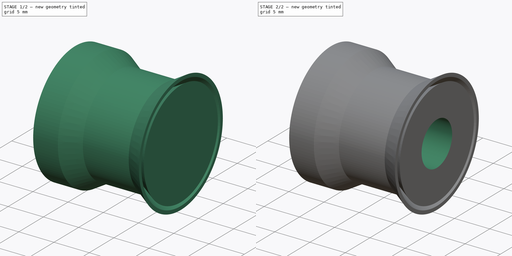
[diagram: build sequence overview — one tinted view per stage of 2, left to right]
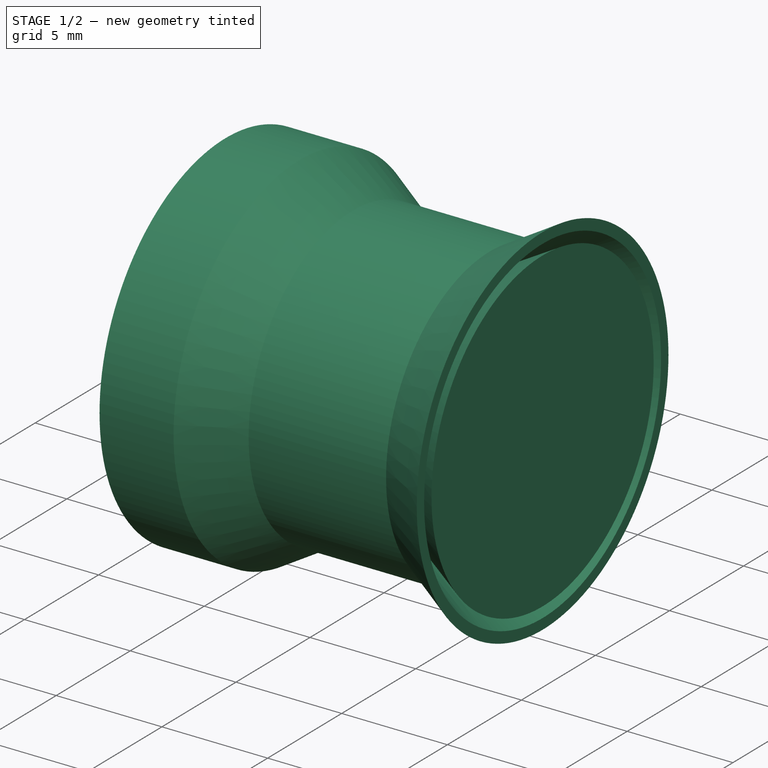
[diagram: stage 1 of 2 — iso view after this stage's code; geometry added in this stage tinted green]
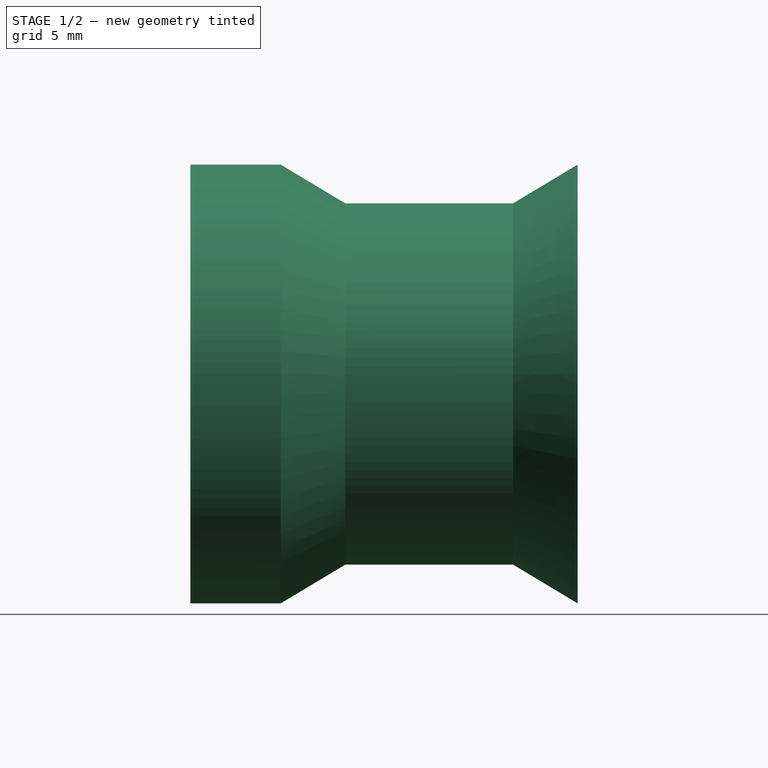
[diagram: stage 1 of 2 — front view after this stage's code; geometry added in this stage tinted green]
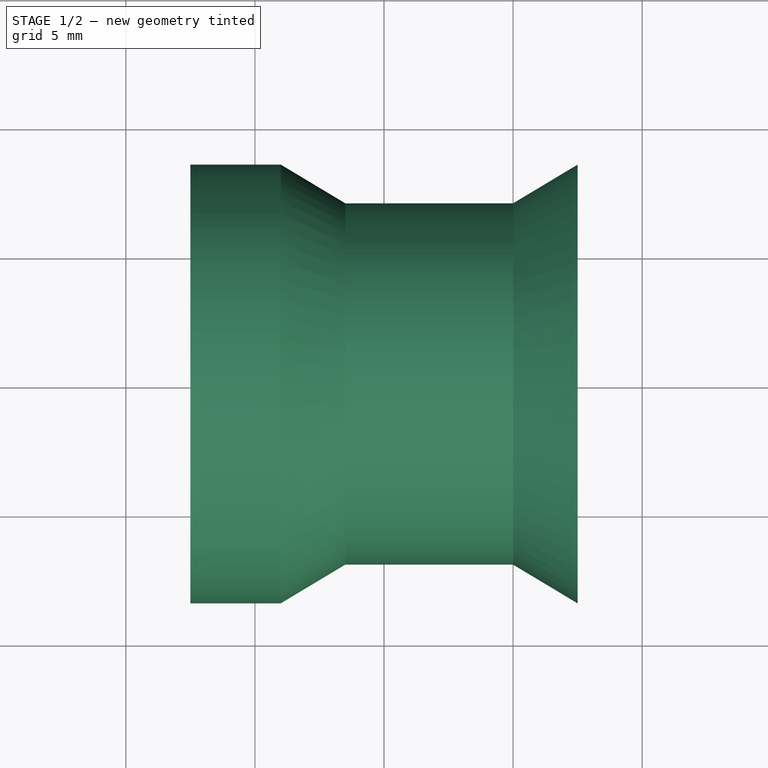
[diagram: stage 1 of 2 — top view after this stage's code; geometry added in this stage tinted green]
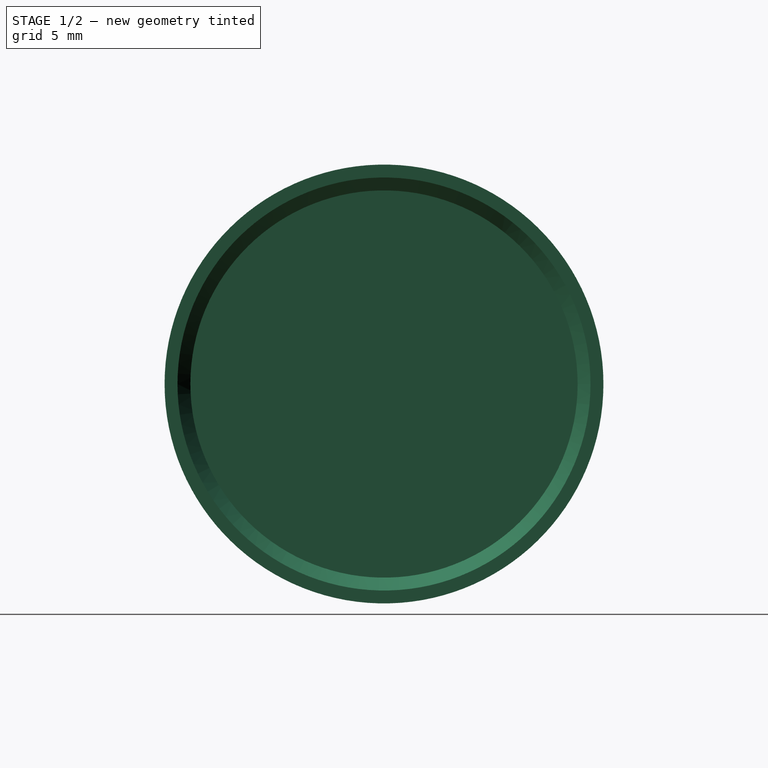
[diagram: stage 1 of 2 — right view after this stage's code; geometry added in this stage tinted green]
FCSTD DOCUMENT  (FreeCAD 0.19R)
Label: x-belt-tensioner-v3
License: All rights reserved
LicenseURL: http://en.wikipedia.org/wiki/All_rights_reserved
objects: Sketcher::SketchObject×4, PartDesign::Revolution×2, PartDesign::Body×2, PartDesign::Pocket×1
note: 12 computed .brp shape members not serialized (recipe doc carries the construction recipe); baked Part::Feature solids carry a one-line shape summary decoded from their .brp

FEATURE [Sketcher::SketchObject] Sketch
  MapMode = 5
  Support = -> [XY_Plane]
  sketch-geometry (6):
    g0: LineSegment StartX=-7.5 StartY=0 StartZ=0 EndX=-7.5 EndY=4 EndZ=0
    g1: LineSegment StartX=-7.5 StartY=4 StartZ=0 EndX=0 EndY=6 EndZ=0
    g2: LineSegment StartX=7.5 StartY=0 StartZ=0 EndX=-7.5 EndY=0 EndZ=0
    g3: LineSegment StartX=7.5 StartY=0 StartZ=0 EndX=7.5 EndY=7.5 EndZ=0
    g4: LineSegment StartX=7.5 StartY=7.5 StartZ=0 EndX=2.45096 EndY=4.58494 EndZ=0
    g5: LineSegment StartX=2.45096 StartY=4.58494 StartZ=0 EndX=0 EndY=6 EndZ=0
  constraints (18):
    c: PointOnObject(g0,g-1)
    c: Vertical(g0)
    c: Coincident(g0,g1)
    c: PointOnObject(g1,g-2)
    c: PointOnObject(g2,g-1)
    c: Coincident(g2,g0)
    c: DistanceY(g0,g0) = 4
    c: DistanceY(g0,g1) = 6
    c: DistanceX(g2,g2) = 15
    c: Coincident(g2,g3)
    c: Vertical(g3)
    c: Coincident(g3,g4)
    c: Coincident(g4,g5)
    c: Coincident(g5,g1)
    c: DistanceY(g3,g3) = 7.5
    c: DistanceX(g0,g-1) = 7.5
    c: Angle(g4,g3) = 1.0472
    c: Angle(g4,g5) = 2.0944
FEATURE [Sketcher::SketchObject] Sketch001
  ExternalGeometry = -> [Sketch]
  MapMode = 5
  Support = -> [XY_Plane001]
  sketch-geometry (10):
    g0: LineSegment StartX=-7.5 StartY=4.5 StartZ=0 EndX=-7.5 EndY=8.5 EndZ=0
    g1: LineSegment StartX=-7.5 StartY=8.5 StartZ=0 EndX=-4 EndY=8.5 EndZ=0
    g2: LineSegment StartX=-4 StartY=8.5 StartZ=0 EndX=-1.5 EndY=7 EndZ=0
    g3: LineSegment StartX=-1.5 StartY=7 StartZ=0 EndX=5 EndY=7 EndZ=0
    g4: LineSegment StartX=5 StartY=7 StartZ=0 EndX=7.5 EndY=8.5 EndZ=0
    g5: LineSegment StartX=7.5 StartY=8.5 StartZ=0 EndX=7.5 EndY=8 EndZ=0
    g6: LineSegment StartX=7.5 StartY=8 StartZ=0 EndX=2.45096 EndY=5.08494 EndZ=0
    g7: LineSegment StartX=2.45096 StartY=5.08494 StartZ=0 EndX=0 EndY=6.5 EndZ=0
    g8: LineSegment StartX=0 StartY=6.5 StartZ=0 EndX=-7.5 EndY=4.5 EndZ=0
    g9: LineSegment [constr] StartX=-7.5 StartY=8.5 StartZ=0 EndX=7.5 EndY=8.5 EndZ=0
  constraints (29):
    c: Vertical(g0)
    c: Coincident(g0,g1)
    c: Horizontal(g1)
    c: Coincident(g1,g2)
    c: Coincident(g2,g3)
    c: Horizontal(g3)
    c: Coincident(g3,g4)
    c: Coincident(g4,g5)
    c: Vertical(g5)
    c: Coincident(g5,g6)
    c: Coincident(g6,g7)
    c: PointOnObject(g7,g-2)
    c: Coincident(g7,g8)
    c: Coincident(g8,g0)
    c: Equal(g2,g4)
    c: DistanceX(g0,g4) = 15
    c: DistanceX(g0,g-1) = 7.5
    c: DistanceY(g-1,g0) = 4.5
    c: DistanceY(g-1,g5) = 8
    c: DistanceY(g-4,g7) = 0.5
    c: DistanceY(g-6,g6) = 0.5
    c: Angle(g6,g7) = 2.0944
    c: DistanceX(g3,g3) = 6.5
    c: DistanceX(g0,g2) = 6
    c: Coincident(g9,g0)
    c: Coincident(g9,g4)
    c: Horizontal(g9)
    c: DistanceY(g-5,g0) = 8.5
    c: DistanceY(g-1,g2) = 7
FEATURE [Sketcher::SketchObject] CopySketch
  sketch-geometry (5):
    g0: LineSegment StartX=-7.5 StartY=0 StartZ=0 EndX=-7.5 EndY=4 EndZ=0
    g1: LineSegment StartX=-7.5 StartY=4 StartZ=0 EndX=0 EndY=6 EndZ=0
    g2: LineSegment StartX=0 StartY=6 StartZ=0 EndX=7.5 EndY=4 EndZ=0
    g3: LineSegment StartX=7.5 StartY=4 StartZ=0 EndX=7.5 EndY=0 EndZ=0
    g4: LineSegment StartX=7.5 StartY=0 StartZ=0 EndX=-7.5 EndY=0 EndZ=0
  constraints (15):
    c: PointOnObject(g0,g-1)
    c: Vertical(g0)
    c: Coincident(g0,g1)
    c: PointOnObject(g1,g-2)
    c: Coincident(g1,g2)
    c: Coincident(g2,g3)
    c: PointOnObject(g3,g-1)
    c: Vertical(g3)
    c: Coincident(g3,g4)
    c: Coincident(g4,g0)
    c: Equal(g1,g2)
    c: Equal(g3,g0)
    c: DistanceY(g0,g0) = 4
    c: DistanceY(g0,g1) = 6
    c: DistanceX(g4,g4) = 15
FEATURE [PartDesign::Revolution] Revolution002  label="InnerPart"
  AllowMultiFace = false
  Angle = 360
  Axis = (1,0,0)
  Base = (0,0,0)
  Profile = -> Sketch
  ReferenceAxis = -> X_Axis
  Reversed = true
FEATURE [PartDesign::Body] Body  label="InnerPart001"
  Group = -> [Sketch,Revolution002,Sketch002,Pocket]
  Origin = -> Origin
  Tip = -> Pocket
FEATURE [PartDesign::Revolution] Revolution
  Angle = 360
  Axis = (1,0,0)
  Base = (0,0,0)
  Profile = -> Sketch001
  ReferenceAxis = -> X_Axis001
FEATURE [PartDesign::Body] Body001
  Group = -> [Sketch001,CopySketch,Revolution]
  Origin = -> Origin001
  Tip = -> Revolution
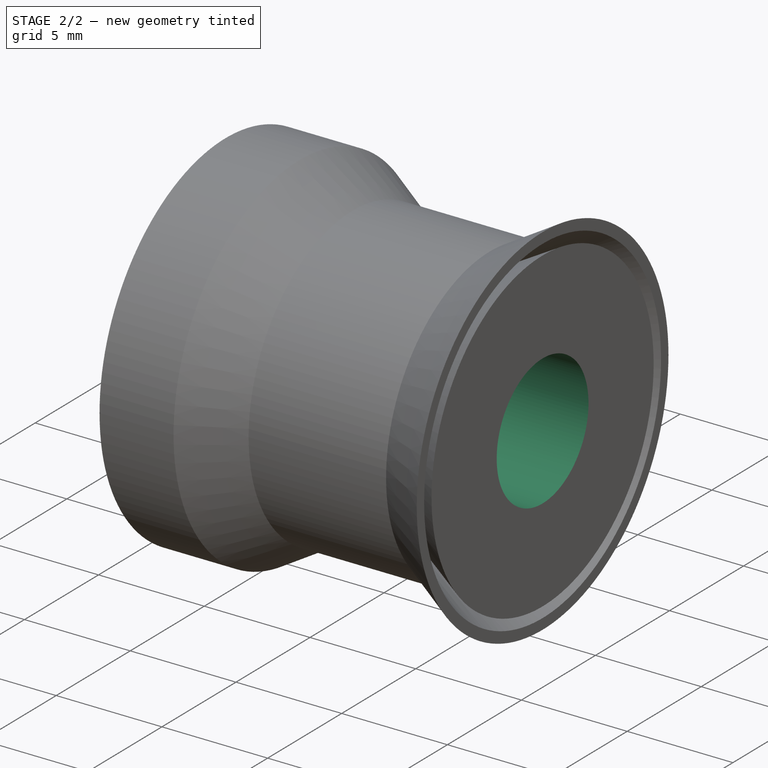
[diagram: stage 2 of 2 — iso view after this stage's code; geometry added in this stage tinted green]
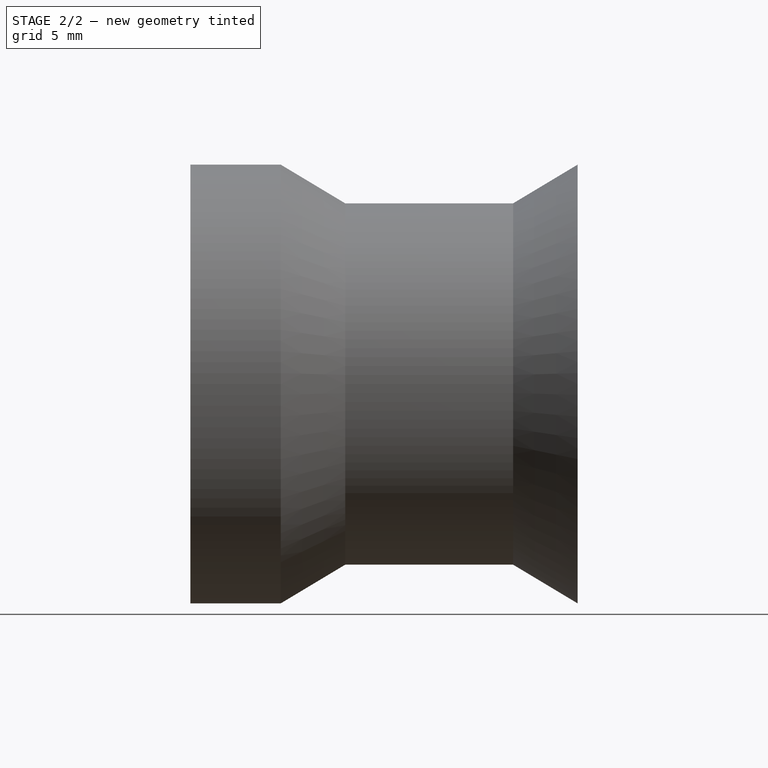
[diagram: stage 2 of 2 — front view after this stage's code; geometry added in this stage tinted green]
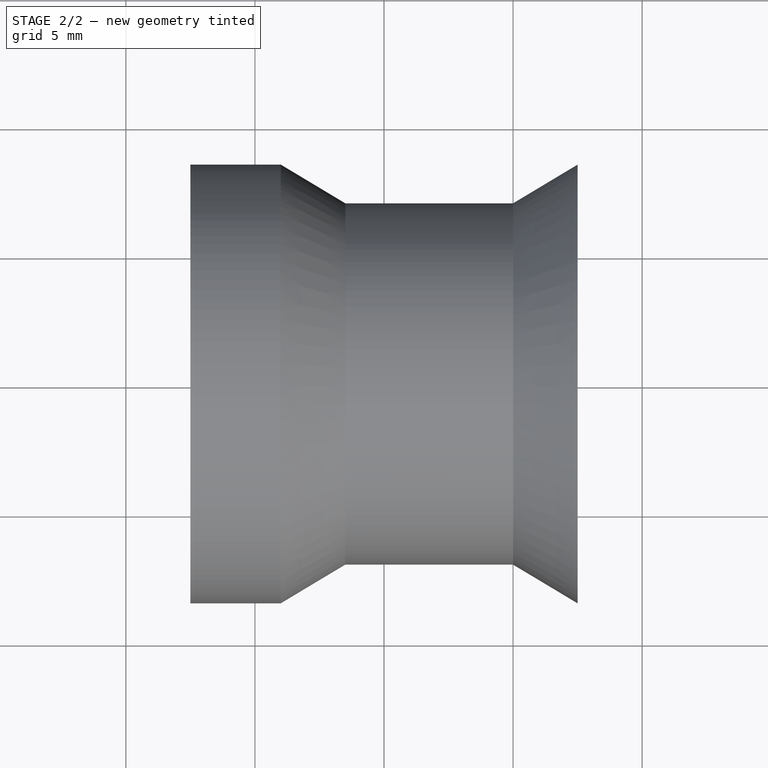
[diagram: stage 2 of 2 — top view after this stage's code; geometry added in this stage tinted green]
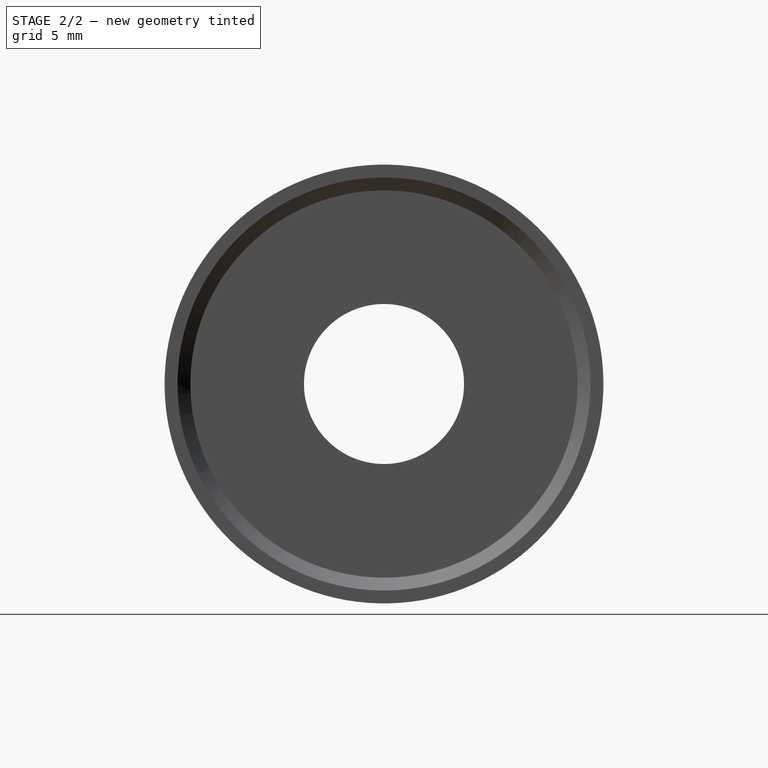
[diagram: stage 2 of 2 — right view after this stage's code; geometry added in this stage tinted green]
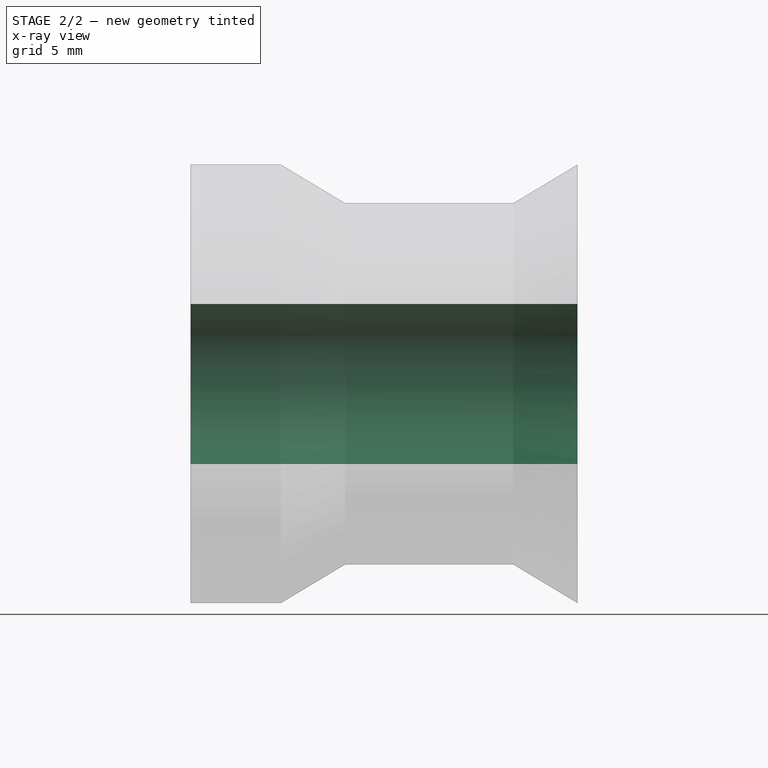
[diagram: stage 2 of 2 — x-ray composite at the front view; earlier geometry ghosted, this stage's added geometry solid]
FEATURE [Sketcher::SketchObject] Sketch002
  MapMode = 5
  Placement = pos=(-7.5,0,0) rot=(0.57735,-0.57735,-0.57735;2.0944rad)
  Support = -> [Revolution002]
  sketch-geometry (1):
    g0: Circle CenterX=0 CenterY=0 CenterZ=0 NormalX=0 NormalY=0 NormalZ=1 AngleXU=0 Radius=3.1
  constraints (2):
    c: Coincident(g0,g-1)
    c: Diameter(g0) = 6.2
FEATURE [PartDesign::Pocket] Pocket
  BaseFeature = -> Revolution002
  Length = 16
  Length2 = 100
  Profile = -> Sketch002
  Type = 0
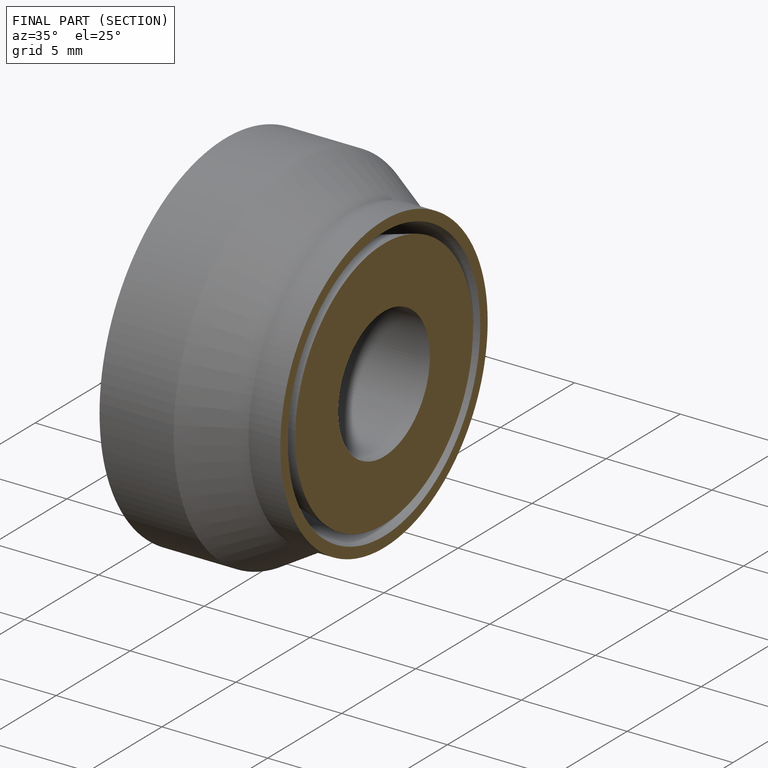
[diagram: finished part — half-section view (interior)]
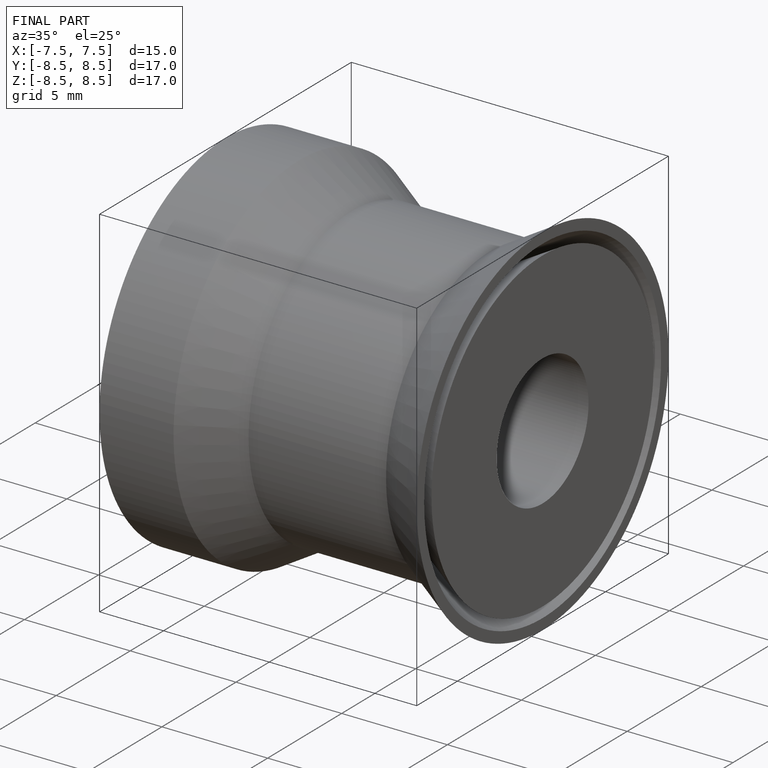
[diagram: finished part — iso view with bounding-box wireframe]
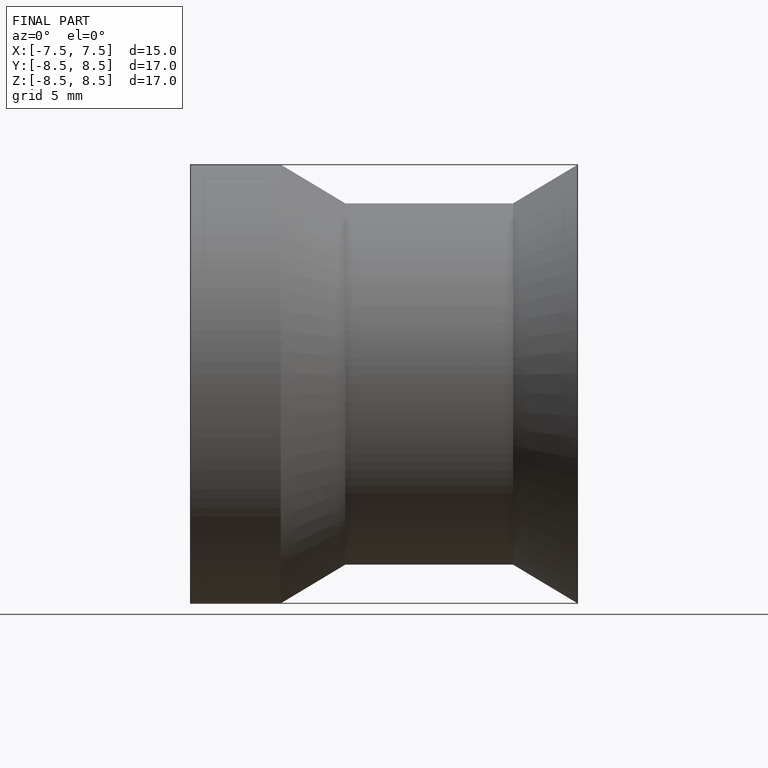
[diagram: finished part — front view with bounding-box wireframe]
